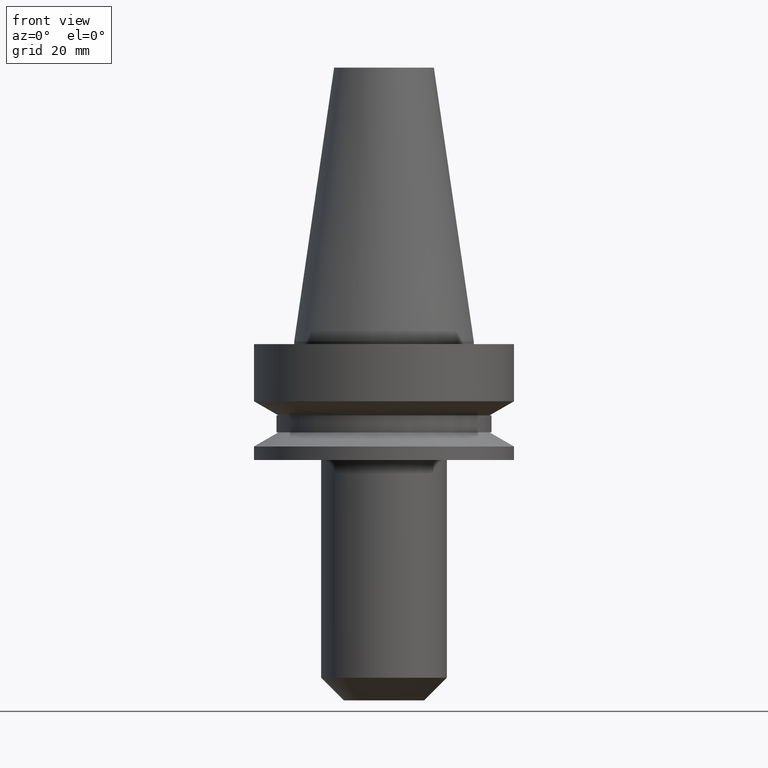
[diagram: clean part render]
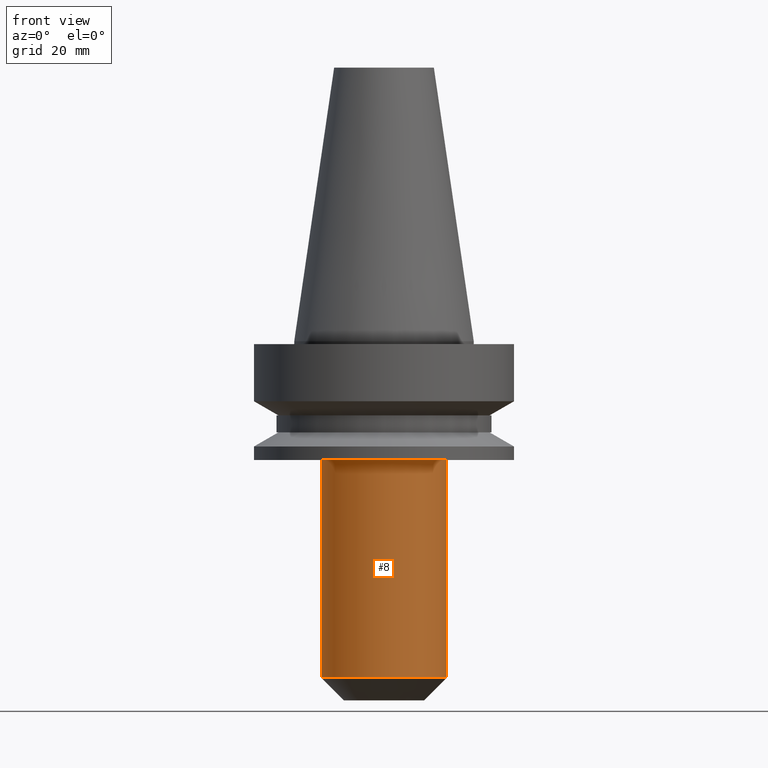
[diagram: same view with one face highlighted and labeled with its STEP entity id]
A machine part, front view. The second image highlights one B-rep face of the part: STEP entity #8.
In plain terms, the highlighted cylindrical surface (partial cylindrical patch) has radius 11.1125 mm, axis along (-0, -0, 1).
Its self-contained STEP definition (entity closure, byte-faithful):
#8 = ADVANCED_FACE ( 'NONE', ( #457 ), #591, .T. ) ;
#58 = CARTESIAN_POINT ( 'NONE',  ( 0.000000000000000000, 0.000000000000000000, 0.000000000000000000 ) ) ;
#64 = CARTESIAN_POINT ( 'NONE',  ( 0.000000000000000000, 0.000000000000000000, -59.50000000000000000 ) ) ;
#79 = EDGE_CURVE ( 'NONE', #201, #210, #269, .T. ) ;
#86 = CIRCLE ( 'NONE', #380, 11.11250000000000071 ) ;
#92 = ORIENTED_EDGE ( 'NONE', *, *, #199, .F. ) ;
#122 = CARTESIAN_POINT ( 'NONE',  ( 11.11249999999999716, 0.000000000000000000, -21.00000000000000355 ) ) ;
#199 = EDGE_CURVE ( 'NONE', #606, #201, #241, .T. ) ;
#201 = VERTEX_POINT ( 'NONE', #369 ) ;
#210 = VERTEX_POINT ( 'NONE', #122 ) ;
#235 = EDGE_CURVE ( 'NONE', #606, #621, #86, .T. ) ;
#241 = LINE ( 'NONE', #310, #418 ) ;
#245 = CARTESIAN_POINT ( 'NONE',  ( 11.11250000000000071, 0.000000000000000000, -59.50000000000000000 ) ) ;
#269 = CIRCLE ( 'NONE', #343, 11.11249999999999716 ) ;
#279 = DIRECTION ( 'NONE',  ( -0.000000000000000000, -0.000000000000000000, 1.000000000000000000 ) ) ;
#291 = DIRECTION ( 'NONE',  ( 1.000000000000000000, 0.000000000000000000, 0.000000000000000000 ) ) ;
#297 = DIRECTION ( 'NONE',  ( -0.000000000000000000, -0.000000000000000000, 1.000000000000000000 ) ) ;
#303 = AXIS2_PLACEMENT_3D ( 'NONE', #58, #398, #291 ) ;
#310 = CARTESIAN_POINT ( 'NONE',  ( -11.11249999999999893, 1.360888755552496227E-15, 0.000000000000000000 ) ) ;
#327 = ORIENTED_EDGE ( 'NONE', *, *, #79, .F. ) ;
#342 = CARTESIAN_POINT ( 'NONE',  ( 0.000000000000000000, 0.000000000000000000, -21.00000000000000355 ) ) ;
#343 = AXIS2_PLACEMENT_3D ( 'NONE', #342, #279, #461 ) ;
#369 = CARTESIAN_POINT ( 'NONE',  ( -11.11249999999999716, 1.360888755552496227E-15, -21.00000000000000355 ) ) ;
#380 = AXIS2_PLACEMENT_3D ( 'NONE', #64, #297, #423 ) ;
#398 = DIRECTION ( 'NONE',  ( -0.000000000000000000, -0.000000000000000000, 1.000000000000000000 ) ) ;
#418 = VECTOR ( 'NONE', #551, 1000.000000000000000 ) ;
#423 = DIRECTION ( 'NONE',  ( 1.000000000000000000, 0.000000000000000000, 0.000000000000000000 ) ) ;
#457 = FACE_OUTER_BOUND ( 'NONE', #695, .T. ) ;
#461 = DIRECTION ( 'NONE',  ( 1.000000000000000000, 0.000000000000000000, 0.000000000000000000 ) ) ;
#521 = DIRECTION ( 'NONE',  ( -0.000000000000000000, -0.000000000000000000, 1.000000000000000000 ) ) ;
#542 = VECTOR ( 'NONE', #521, 1000.000000000000000 ) ;
#551 = DIRECTION ( 'NONE',  ( -0.000000000000000000, -0.000000000000000000, 1.000000000000000000 ) ) ;
#557 = EDGE_CURVE ( 'NONE', #621, #210, #708, .T. ) ;
#588 = ORIENTED_EDGE ( 'NONE', *, *, #557, .T. ) ;
#591 = CYLINDRICAL_SURFACE ( 'NONE', #303, 11.11249999999999893 ) ;
#603 = CARTESIAN_POINT ( 'NONE',  ( -11.11250000000000071, 1.360888755552496622E-15, -59.50000000000000000 ) ) ;
#606 = VERTEX_POINT ( 'NONE', #603 ) ;
#621 = VERTEX_POINT ( 'NONE', #245 ) ;
#695 = EDGE_LOOP ( 'NONE', ( #92, #739, #588, #327 ) ) ;
#698 = CARTESIAN_POINT ( 'NONE',  ( 11.11249999999999893, 0.000000000000000000, 0.000000000000000000 ) ) ;
#708 = LINE ( 'NONE', #698, #542 ) ;
#739 = ORIENTED_EDGE ( 'NONE', *, *, #235, .T. ) ;